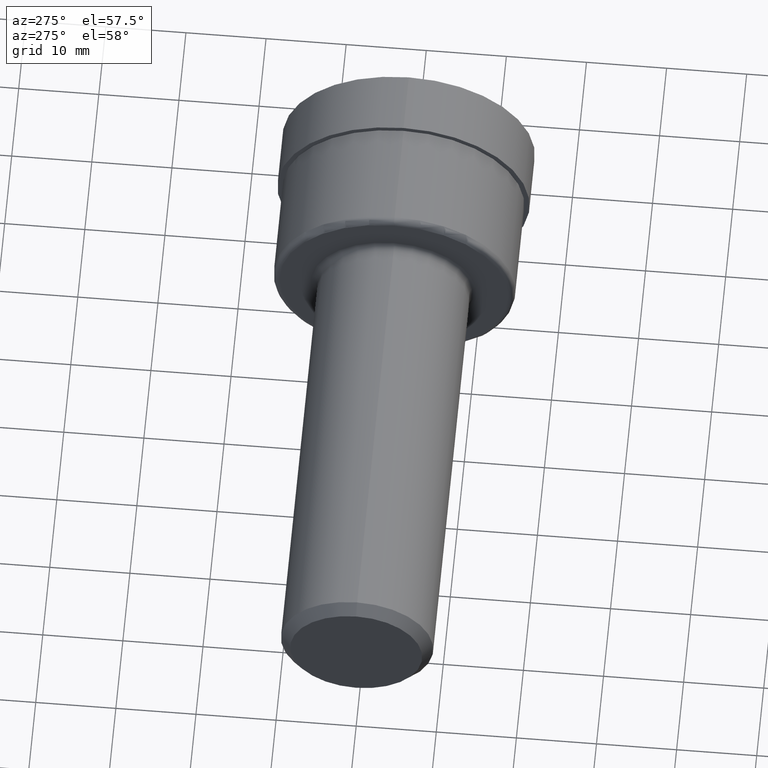
[diagram: clean part render]
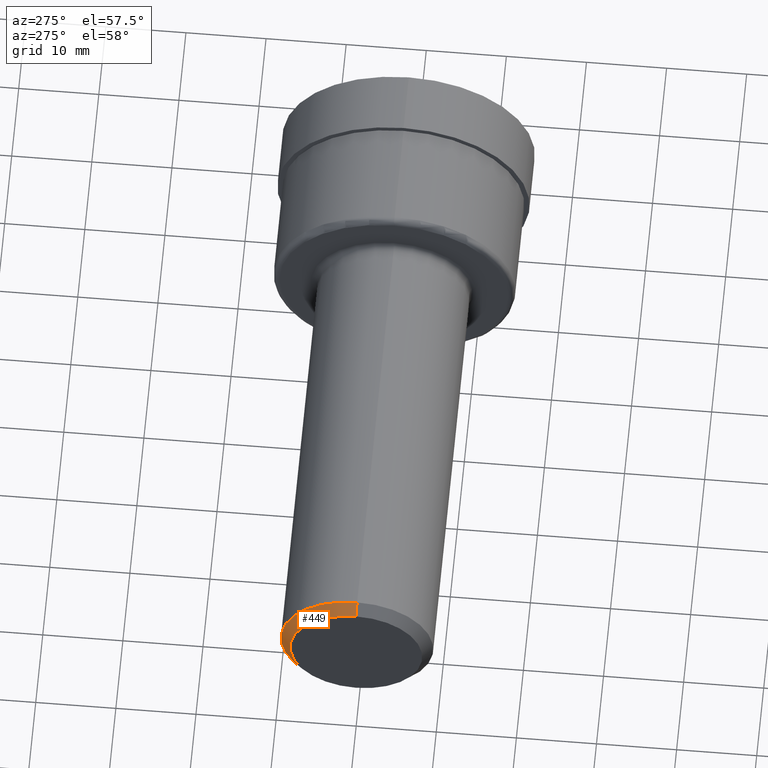
[diagram: same view with one face highlighted and labeled with its STEP entity id]
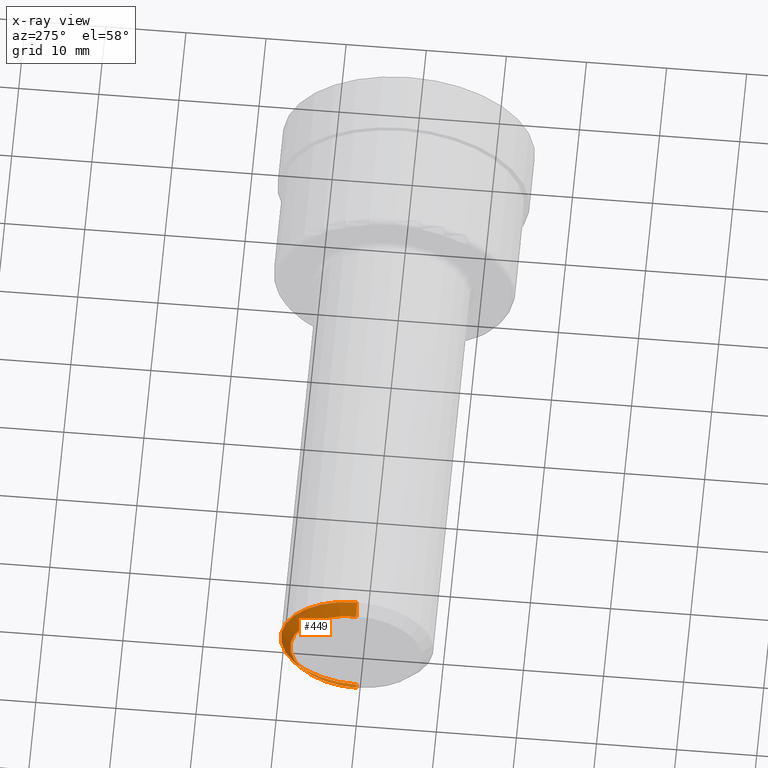
[diagram: x-ray of the same camera — body ghosted, the highlighted face saturated]
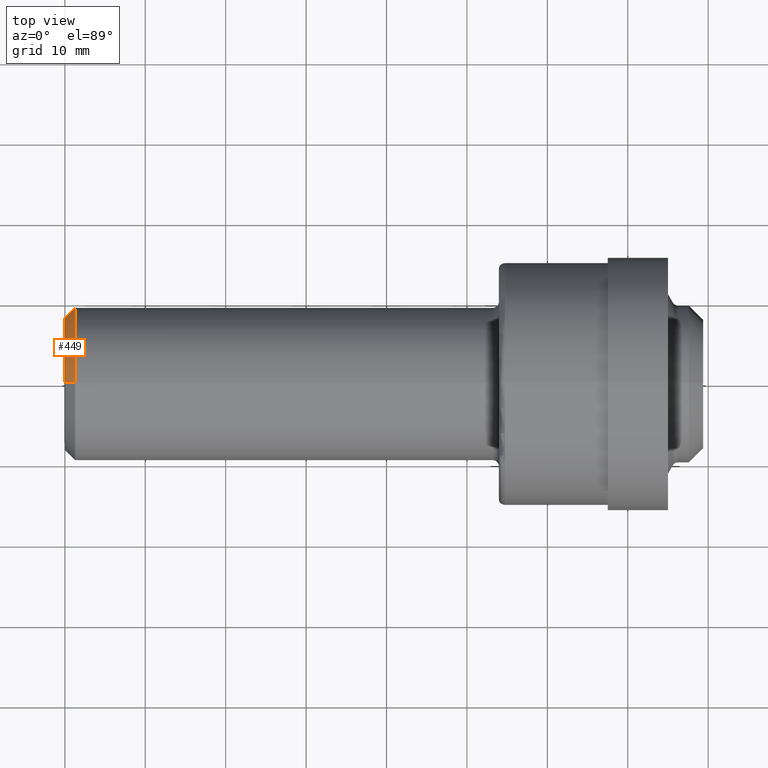
[diagram: same view with one face highlighted and labeled with its STEP entity id]
A machine part, auxiliary view. The second image highlights one B-rep face of the part: STEP entity #449.
The next image is the same camera in x-ray: the body ghosted, the highlighted face saturated — about 0% of this face is hidden behind the body in this view.
A second angle (top view) of the same face is appended — the face is thin or edge-on in the first view.
In plain terms, the highlighted conical surface has half-angle 45 deg.
Its self-contained STEP definition (entity closure, byte-faithful):
#38 = DIRECTION ( 'NONE',  ( 1.000000000000000000, 0.000000000000000000, 0.000000000000000000 ) ) ;
#41 = FACE_OUTER_BOUND ( 'NONE', #538, .T. ) ;
#52 = VERTEX_POINT ( 'NONE', #546 ) ;
#64 = LINE ( 'NONE', #588, #470 ) ;
#102 = VERTEX_POINT ( 'NONE', #336 ) ;
#119 = EDGE_CURVE ( 'NONE', #208, #144, #64, .T. ) ;
#126 = CARTESIAN_POINT ( 'NONE',  ( 0.05000000000000000278, 0.000000000000000000, 0.3748500000000000165 ) ) ;
#144 = VERTEX_POINT ( 'NONE', #126 ) ;
#162 = DIRECTION ( 'NONE',  ( -1.000000000000000000, -0.000000000000000000, -0.000000000000000000 ) ) ;
#180 = LINE ( 'NONE', #655, #515 ) ;
#197 = CIRCLE ( 'NONE', #346, 0.3248500000000002497 ) ;
#208 = VERTEX_POINT ( 'NONE', #429 ) ;
#260 = DIRECTION ( 'NONE',  ( 0.000000000000000000, 0.000000000000000000, -1.000000000000000000 ) ) ;
#277 = ORIENTED_EDGE ( 'NONE', *, *, #434, .F. ) ;
#292 = DIRECTION ( 'NONE',  ( 0.7071067811865489050, 8.659560562354915602E-17, 0.7071067811865461294 ) ) ;
#321 = CARTESIAN_POINT ( 'NONE',  ( 0.000000000000000000, 0.000000000000000000, 0.000000000000000000 ) ) ;
#323 = AXIS2_PLACEMENT_3D ( 'NONE', #521, #38, #260 ) ;
#336 = CARTESIAN_POINT ( 'NONE',  ( 0.05000000000000000278, 4.590588526603853748E-17, -0.3748500000000000165 ) ) ;
#342 = DIRECTION ( 'NONE',  ( 0.7071067811865489050, 0.000000000000000000, -0.7071067811865461294 ) ) ;
#346 = AXIS2_PLACEMENT_3D ( 'NONE', #321, #432, #533 ) ;
#356 = CONICAL_SURFACE ( 'NONE', #323, 0.3748500000000000165, 0.7853981633974463916 ) ;
#367 = ORIENTED_EDGE ( 'NONE', *, *, #504, .T. ) ;
#405 = AXIS2_PLACEMENT_3D ( 'NONE', #689, #162, #425 ) ;
#425 = DIRECTION ( 'NONE',  ( 0.000000000000000000, 0.000000000000000000, 1.000000000000000000 ) ) ;
#429 = CARTESIAN_POINT ( 'NONE',  ( 0.000000000000000000, 4.284426826817016740E-17, 0.3248500000000002497 ) ) ;
#432 = DIRECTION ( 'NONE',  ( -1.000000000000000000, -0.000000000000000000, -0.000000000000000000 ) ) ;
#434 = EDGE_CURVE ( 'NONE', #208, #52, #197, .T. ) ;
#449 = ADVANCED_FACE ( 'NONE', ( #41 ), #356, .T. ) ;
#470 = VECTOR ( 'NONE', #292, 39.37007874015748143 ) ;
#504 = EDGE_CURVE ( 'NONE', #144, #102, #628, .T. ) ;
#515 = VECTOR ( 'NONE', #342, 39.37007874015748143 ) ;
#521 = CARTESIAN_POINT ( 'NONE',  ( 0.05000000000000000278, 0.000000000000000000, 0.000000000000000000 ) ) ;
#533 = DIRECTION ( 'NONE',  ( 0.000000000000000000, 0.000000000000000000, 1.000000000000000000 ) ) ;
#538 = EDGE_LOOP ( 'NONE', ( #277, #610, #367, #566 ) ) ;
#546 = CARTESIAN_POINT ( 'NONE',  ( 0.000000000000000000, 0.000000000000000000, -0.3248500000000002497 ) ) ;
#566 = ORIENTED_EDGE ( 'NONE', *, *, #657, .F. ) ;
#588 = CARTESIAN_POINT ( 'NONE',  ( 0.05000000000000000278, 4.590588526603853748E-17, 0.3748500000000000165 ) ) ;
#610 = ORIENTED_EDGE ( 'NONE', *, *, #119, .T. ) ;
#628 = CIRCLE ( 'NONE', #405, 0.3748500000000000165 ) ;
#655 = CARTESIAN_POINT ( 'NONE',  ( 0.05000000000000000278, 0.000000000000000000, -0.3748500000000000165 ) ) ;
#657 = EDGE_CURVE ( 'NONE', #52, #102, #180, .T. ) ;
#689 = CARTESIAN_POINT ( 'NONE',  ( 0.05000000000000000278, 0.000000000000000000, 0.000000000000000000 ) ) ;